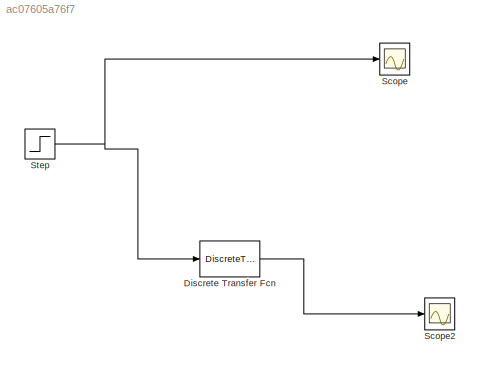
MODEL slx_ac07605a76f7
KIND model
CONFIG AbsTol = auto
CONFIG FixedStep = 1e-05
CONFIG MaxStep = auto
CONFIG MinStep = auto
CONFIG RelTol = 1e-4
CONFIG SampleTimeConstraint = Unconstrained
CONFIG Solver = FixedStepAuto
CONFIG SolverMode = Auto
CONFIG SolverName = FixedStepAuto
CONFIG StartTime = 0.0
CONFIG StopTime = 2
BLOCK [DiscreteTransferFcn] Discrete Transfer Fcn
  Denominator = [1 -8.605285413471888e-05 -0.999461913536859]
  InputPortMap = u0
  Numerator = [0.002729871894989]
  Ports = [1, 1]
  SampleTime = 1e-05
BLOCK [Scope] Scope
  Ports = [1]
  ScopeSpecificationString = Simulink.scopes.TimeScopeBlockCfg('CurrentConfiguration', extmgr.ConfigurationSet(extmgr.Configuration('Core','General UI',true),extmgr.Configuration('Core','Source UI',true),extmgr.Configuration('Sources','WiredSimulink',true),extmgr.Configuration('Visuals','Time Domain',true,'SerializedDisplays',{struct('MinYLimReal','-1.5','MaxYLimReal','13.5','YLabelReal','','MinYLimMag','0.00000','MaxYLimMag'...<+1333ch>
BLOCK [Scope] Scope2
  Ports = [1]
  ScopeSpecificationString = Simulink.scopes.TimeScopeBlockCfg('CurrentConfiguration', extmgr.ConfigurationSet(extmgr.Configuration('Core','General UI',true),extmgr.Configuration('Core','Source UI',true),extmgr.Configuration('Sources','WiredSimulink',true,'DataLoggingVariableName','ScopeData2'),extmgr.Configuration('Visuals','Time Domain',true,'SerializedDisplays',{struct('MinYLimReal','-9.05864','MaxYLimReal','81.52772','YLa...<+1436ch>
BLOCK [Step] Step
  After = 12
  SampleTime = 0
  Time = 0.5
LINE Discrete Transfer Fcn:1 -> Scope2:1
NET Step:1 -> Discrete Transfer Fcn:1, Scope:1
note: NET lines group one-source signal fan-out (src -> all destinations, sorted); 1:1 wires keep LINE
